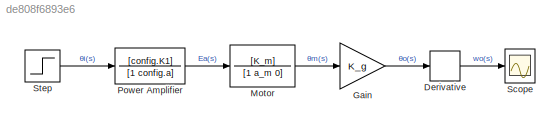
MODEL slx_de808f6893e6
KIND model
CONFIG AbsTol = auto
CONFIG EnableMultiTasking = off
CONFIG FixedStep = auto
CONFIG MaxStep = auto
CONFIG MinStep = auto
CONFIG RelTol = 1e-3
CONFIG SampleTimeConstraint = Unconstrained
CONFIG SolverName = VariableStepAuto
CONFIG StartTime = 0.0
CONFIG StopTime = 0.1
BLOCK [Derivative] Derivative
BLOCK [Gain] Gain
  Gain = K_g
BLOCK [TransferFcn] Motor
  Denominator = [1 a_m 0]
  Numerator = [K_m]
BLOCK [TransferFcn] Power Amplifier
  Denominator = [1 config.a]
  Numerator = [config.K1]
BLOCK [Scope] Scope
  Floating = off
  NumInputPorts = 1
  ScopeSpecificationString = Simulink.scopes.TimeScopeBlockCfg('CurrentConfiguration', extmgr.ConfigurationSet(extmgr.Configuration('Core','General UI',true),extmgr.Configuration('Core','Source UI',true),extmgr.Configuration('Sources','WiredSimulink',true),extmgr.Configuration('Visuals','Time Domain',true,'SerializedDisplays',{struct('MinYLimReal','-0.00624','MaxYLimReal','0.05614','YLabelReal','','MinYLimMag','0.00000','MaxY...<+1353ch>
BLOCK [Step] Step
  SampleTime = 0
  Time = 0
LINE Derivative:1 -> Scope:1
LINE Gain:1 -> Derivative:1
LINE Motor:1 -> Gain:1
LINE Power Amplifier:1 -> Motor:1
LINE Step:1 -> Power Amplifier:1
